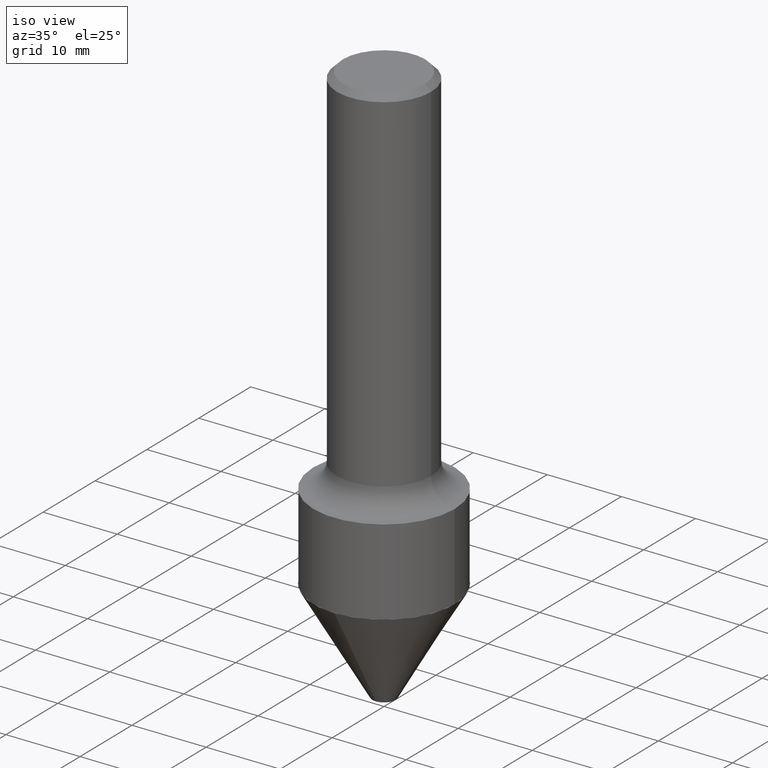
[diagram: clean part render]
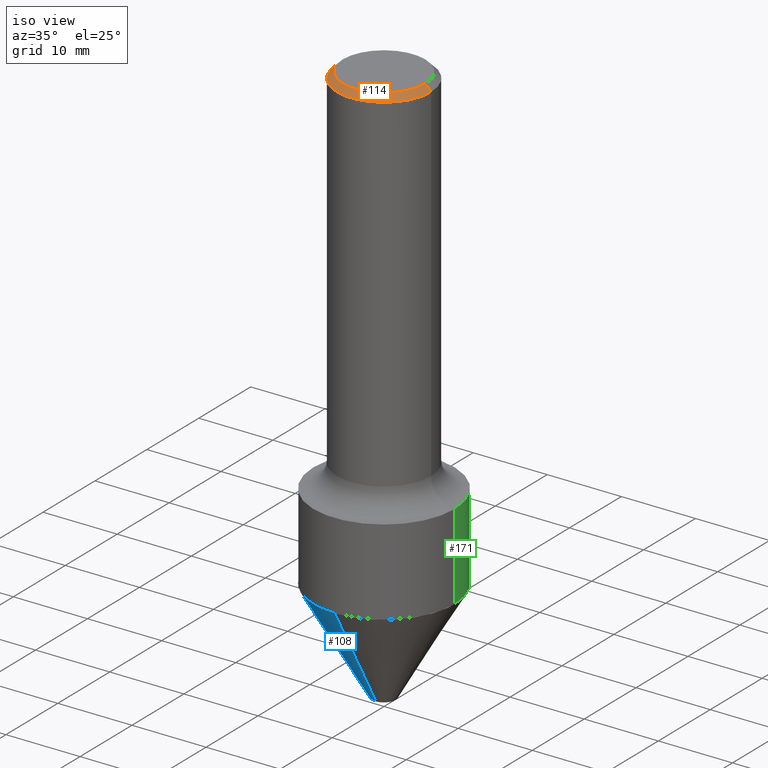
[diagram: same view with three faces highlighted in distinct colors, each labeled with its STEP entity id]
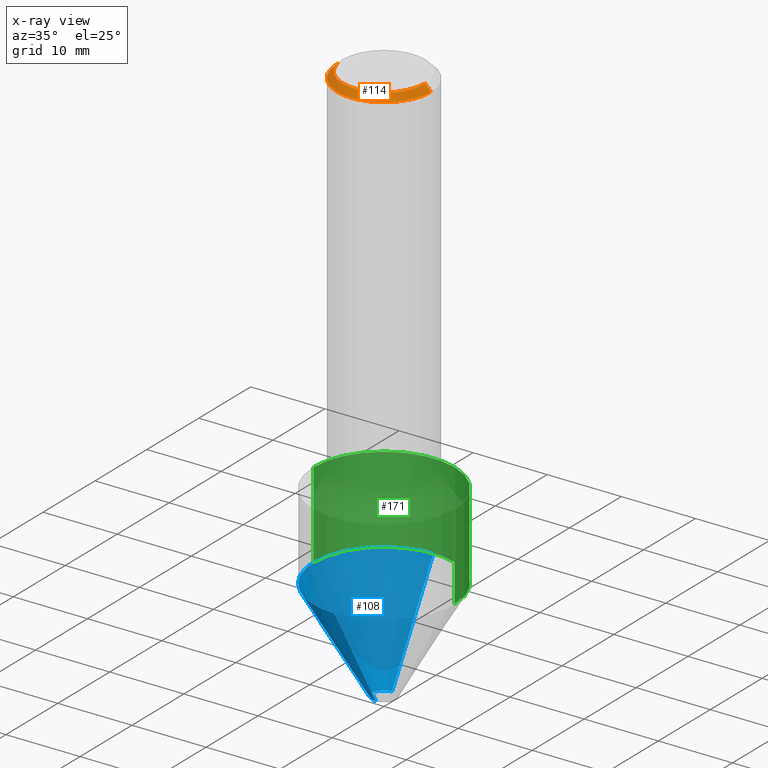
[diagram: x-ray of the same camera — body ghosted, the three highlighted faces saturated]
A machine part, iso view with three faces highlighted in distinct colors.
The next image is the same camera in x-ray (body ghosted, the three faces saturated) — at least one of them is partly hidden behind the body in this view.
Their STEP definitions:

[orange] entity #114 — the highlighted conical surface has half-angle 45 deg.
#37 = DIRECTION ( 'NONE',  ( -1.000000000000000000, 6.982962677686266711E-15, 0.000000000000000000 ) ) ;
#50 = DIRECTION ( 'NONE',  ( -2.445468806185136597E-29, 3.491481338843145583E-15, 1.000000000000000000 ) ) ;
#60 = ORIENTED_EDGE ( 'NONE', *, *, #115, .F. ) ;
#67 = ORIENTED_EDGE ( 'NONE', *, *, #286, .T. ) ;
#76 = DIRECTION ( 'NONE',  ( 0.7071067811865450192, -7.319954787623246579E-15, -0.7071067811865500152 ) ) ;
#78 = VERTEX_POINT ( 'NONE', #128 ) ;
#84 = LINE ( 'NONE', #331, #457 ) ;
#95 = CIRCLE ( 'NONE', #200, 0.2187999999999999945 ) ;
#110 = CONICAL_SURFACE ( 'NONE', #348, 0.2500000000000000000, 0.7853981633974447263 ) ;
#114 = ADVANCED_FACE ( 'NONE', ( #422 ), #110, .T. ) ;
#115 = EDGE_CURVE ( 'NONE', #168, #246, #84, .T. ) ;
#124 = EDGE_LOOP ( 'NONE', ( #60, #379, #373, #67 ) ) ;
#128 = CARTESIAN_POINT ( 'NONE',  ( -0.2500000000000000000, 1.636806451649659727E-15, -0.03120000000000020673 ) ) ;
#131 = EDGE_CURVE ( 'NONE', #492, #78, #452, .T. ) ;
#132 = DIRECTION ( 'NONE',  ( 2.445468806185136597E-29, -3.491481338843145583E-15, -1.000000000000000000 ) ) ;
#146 = EDGE_CURVE ( 'NONE', #492, #168, #95, .T. ) ;
#167 = DIRECTION ( 'NONE',  ( -0.7071067811865450192, 2.468850131082230634E-15, -0.7071067811865500152 ) ) ;
#168 = VERTEX_POINT ( 'NONE', #199 ) ;
#178 = CARTESIAN_POINT ( 'NONE',  ( 0.2500000000000000000, -1.824058717214789841E-15, -0.03120000000000020673 ) ) ;
#199 = CARTESIAN_POINT ( 'NONE',  ( 0.2187999999999999945, -1.662567839563600480E-15, 7.654042494682104827E-18 ) ) ;
#200 = AXIS2_PLACEMENT_3D ( 'NONE', #418, #50, #254 ) ;
#204 = CARTESIAN_POINT ( 'NONE',  ( -0.2500000000000000000, 1.636806451649659727E-15, -0.03120000000000020673 ) ) ;
#246 = VERTEX_POINT ( 'NONE', #178 ) ;
#254 = DIRECTION ( 'NONE',  ( 1.000000000000000000, -6.982962677686266711E-15, 4.876319244907601817E-29 ) ) ;
#264 = CARTESIAN_POINT ( 'NONE',  ( 7.629862675297676574E-31, -1.089342177719068640E-16, -0.03120000000000020673 ) ) ;
#286 = EDGE_CURVE ( 'NONE', #78, #246, #463, .T. ) ;
#288 = CARTESIAN_POINT ( 'NONE',  ( 7.629862675297676574E-31, -1.089342177719068640E-16, -0.03120000000000020673 ) ) ;
#301 = DIRECTION ( 'NONE',  ( -2.445468806185136597E-29, 3.491481338843145583E-15, 1.000000000000000000 ) ) ;
#331 = CARTESIAN_POINT ( 'NONE',  ( 0.2500000000000000000, -1.824058717214789841E-15, -0.03120000000000020673 ) ) ;
#345 = AXIS2_PLACEMENT_3D ( 'NONE', #264, #301, #495 ) ;
#348 = AXIS2_PLACEMENT_3D ( 'NONE', #288, #132, #37 ) ;
#366 = VECTOR ( 'NONE', #167, 39.37007874015748143 ) ;
#369 = CARTESIAN_POINT ( 'NONE',  ( -0.2187999999999999945, 1.582339342763707436E-15, 7.654042494660075270E-18 ) ) ;
#373 = ORIENTED_EDGE ( 'NONE', *, *, #131, .T. ) ;
#379 = ORIENTED_EDGE ( 'NONE', *, *, #146, .F. ) ;
#418 = CARTESIAN_POINT ( 'NONE',  ( -1.871772216193327269E-46, 2.672394653685605698E-32, 7.654042494670949841E-18 ) ) ;
#422 = FACE_OUTER_BOUND ( 'NONE', #124, .T. ) ;
#452 = LINE ( 'NONE', #204, #366 ) ;
#457 = VECTOR ( 'NONE', #76, 39.37007874015748143 ) ;
#463 = CIRCLE ( 'NONE', #345, 0.2500000000000000000 ) ;
#492 = VERTEX_POINT ( 'NONE', #369 ) ;
#495 = DIRECTION ( 'NONE',  ( 1.000000000000000000, -6.982962677686266711E-15, 0.000000000000000000 ) ) ;

[blue] entity #108 — the highlighted conical surface has half-angle 30 deg.
#10 = DIRECTION ( 'NONE',  ( -3.491481338843390130E-15, -0.5000000000000307532, 0.8660254037844207220 ) ) ;
#12 = DIRECTION ( 'NONE',  ( -2.537124591187716999E-29, 3.360225037996138960E-15, 1.000000000000000000 ) ) ;
#15 = VECTOR ( 'NONE', #10, 39.37007874015748854 ) ;
#25 = EDGE_CURVE ( 'NONE', #496, #405, #341, .T. ) ;
#27 = EDGE_CURVE ( 'NONE', #252, #405, #316, .T. ) ;
#58 = CARTESIAN_POINT ( 'NONE',  ( -4.294522046776347563E-16, -0.06150000000001086542, -3.000000000000000888 ) ) ;
#69 = EDGE_CURVE ( 'NONE', #342, #496, #474, .T. ) ;
#86 = VECTOR ( 'NONE', #125, 39.37007874015748143 ) ;
#108 = ADVANCED_FACE ( 'NONE', ( #118 ), #323, .T. ) ;
#118 = FACE_OUTER_BOUND ( 'NONE', #355, .T. ) ;
#125 = DIRECTION ( 'NONE',  ( 3.552713678800717866E-15, 0.5000000000000366374, 0.8660254037844175024 ) ) ;
#139 = DIRECTION ( 'NONE',  ( -6.982962677686265922E-15, -1.000000000000000000, 3.642463991552350169E-15 ) ) ;
#156 = CARTESIAN_POINT ( 'NONE',  ( 5.970236193676751076E-29, -8.633404227315247057E-15, -2.457002071827207423 ) ) ;
#241 = CARTESIAN_POINT ( 'NONE',  ( -2.618611004132290063E-15, -0.3750000000000085487, -2.457002071827206091 ) ) ;
#242 = AXIS2_PLACEMENT_3D ( 'NONE', #255, #400, #473 ) ;
#248 = AXIS2_PLACEMENT_3D ( 'NONE', #156, #12, #448 ) ;
#250 = ORIENTED_EDGE ( 'NONE', *, *, #25, .F. ) ;
#252 = VERTEX_POINT ( 'NONE', #58 ) ;
#255 = CARTESIAN_POINT ( 'NONE',  ( 7.347889590207925829E-29, -1.045799946114149675E-14, -3.000000000000000888 ) ) ;
#272 = CARTESIAN_POINT ( 'NONE',  ( -2.618611004132290457E-15, -0.3750000000000086597, -2.457002071827206091 ) ) ;
#276 = CARTESIAN_POINT ( 'NONE',  ( 1.550759520796487283E-15, 0.06149999999998995159, -3.000000000000000888 ) ) ;
#302 = CIRCLE ( 'NONE', #242, 0.06150000000000040851 ) ;
#316 = LINE ( 'NONE', #272, #15 ) ;
#323 = CONICAL_SURFACE ( 'NONE', #248, 0.3750000000000000555, 0.5235987755983378955 ) ;
#340 = CARTESIAN_POINT ( 'NONE',  ( 2.664535259100435256E-15, 0.3749999999999914513, -2.457002071827208756 ) ) ;
#341 = CIRCLE ( 'NONE', #393, 0.3750000000000000555 ) ;
#342 = VERTEX_POINT ( 'NONE', #276 ) ;
#355 = EDGE_LOOP ( 'NONE', ( #482, #376, #476, #250 ) ) ;
#376 = ORIENTED_EDGE ( 'NONE', *, *, #381, .T. ) ;
#381 = EDGE_CURVE ( 'NONE', #342, #252, #302, .T. ) ;
#390 = CARTESIAN_POINT ( 'NONE',  ( 5.970236193676751076E-29, -8.633404227315247057E-15, -2.457002071827207423 ) ) ;
#393 = AXIS2_PLACEMENT_3D ( 'NONE', #390, #504, #139 ) ;
#400 = DIRECTION ( 'NONE',  ( -2.537124591187716999E-29, 3.360225037996138960E-15, 1.000000000000000000 ) ) ;
#405 = VERTEX_POINT ( 'NONE', #241 ) ;
#421 = CARTESIAN_POINT ( 'NONE',  ( 2.664535259100435650E-15, 0.3749999999999915068, -2.457002071827208756 ) ) ;
#448 = DIRECTION ( 'NONE',  ( -6.982962677686265922E-15, -1.000000000000000000, 3.642463991552350169E-15 ) ) ;
#473 = DIRECTION ( 'NONE',  ( -6.982962677686265133E-15, -1.000000000000000000, 0.000000000000000000 ) ) ;
#474 = LINE ( 'NONE', #340, #86 ) ;
#476 = ORIENTED_EDGE ( 'NONE', *, *, #27, .T. ) ;
#482 = ORIENTED_EDGE ( 'NONE', *, *, #69, .F. ) ;
#496 = VERTEX_POINT ( 'NONE', #421 ) ;
#504 = DIRECTION ( 'NONE',  ( -2.537124591187716999E-29, 3.360225037996138960E-15, 1.000000000000000000 ) ) ;

[green] entity #171 — the highlighted cylindrical surface (partial cylindrical patch) has radius 9.525 mm, axis along (-0, 0, 1).
#4 = EDGE_LOOP ( 'NONE', ( #300, #338, #310, #416 ) ) ;
#14 = VERTEX_POINT ( 'NONE', #270 ) ;
#23 = CARTESIAN_POINT ( 'NONE',  ( 6.006076454579503906E-29, -8.575085401944798820E-15, -2.456002071827207978 ) ) ;
#35 = EDGE_CURVE ( 'NONE', #111, #14, #130, .T. ) ;
#44 = CARTESIAN_POINT ( 'NONE',  ( 0.3750000000000000555, -1.119369640607714884E-14, -2.456002071827207978 ) ) ;
#48 = CARTESIAN_POINT ( 'NONE',  ( -0.3750000000000000555, 2.664535259100376091E-15, -1.844600658845589598E-29 ) ) ;
#71 = EDGE_CURVE ( 'NONE', #14, #511, #371, .T. ) ;
#73 = LINE ( 'NONE', #48, #232 ) ;
#111 = VERTEX_POINT ( 'NONE', #44 ) ;
#130 = LINE ( 'NONE', #298, #318 ) ;
#148 = EDGE_CURVE ( 'NONE', #493, #511, #73, .T. ) ;
#152 = DIRECTION ( 'NONE',  ( -2.445468806185136597E-29, 3.491481338843145583E-15, 1.000000000000000000 ) ) ;
#171 = ADVANCED_FACE ( 'NONE', ( #370 ), #362, .T. ) ;
#232 = VECTOR ( 'NONE', #239, 39.37007874015748143 ) ;
#239 = DIRECTION ( 'NONE',  ( -2.445468806185136877E-29, 3.491481338843145188E-15, 1.000000000000000000 ) ) ;
#257 = DIRECTION ( 'NONE',  ( 1.000000000000000000, -6.982962677686266711E-15, 0.000000000000000000 ) ) ;
#270 = CARTESIAN_POINT ( 'NONE',  ( 0.3750000000000000555, -9.601573681818641971E-15, -2.000000000000000444 ) ) ;
#280 = EDGE_CURVE ( 'NONE', #111, #493, #467, .T. ) ;
#283 = AXIS2_PLACEMENT_3D ( 'NONE', #491, #152, #257 ) ;
#298 = CARTESIAN_POINT ( 'NONE',  ( 0.3750000000000000555, -2.618611004132350016E-15, 1.828566290923476203E-29 ) ) ;
#300 = ORIENTED_EDGE ( 'NONE', *, *, #280, .T. ) ;
#310 = ORIENTED_EDGE ( 'NONE', *, *, #71, .F. ) ;
#318 = VECTOR ( 'NONE', #409, 39.37007874015748143 ) ;
#319 = AXIS2_PLACEMENT_3D ( 'NONE', #23, #507, #392 ) ;
#338 = ORIENTED_EDGE ( 'NONE', *, *, #148, .T. ) ;
#362 = CYLINDRICAL_SURFACE ( 'NONE', #498, 0.3750000000000000555 ) ;
#367 = DIRECTION ( 'NONE',  ( -2.445468806185136597E-29, 3.491481338843145583E-15, 1.000000000000000000 ) ) ;
#370 = FACE_OUTER_BOUND ( 'NONE', #4, .T. ) ;
#371 = CIRCLE ( 'NONE', #283, 0.3750000000000000555 ) ;
#392 = DIRECTION ( 'NONE',  ( 1.000000000000000000, -6.982962677686266711E-15, 0.000000000000000000 ) ) ;
#409 = DIRECTION ( 'NONE',  ( -2.445468806185136877E-29, 3.491481338843145188E-15, 1.000000000000000000 ) ) ;
#416 = ORIENTED_EDGE ( 'NONE', *, *, #35, .F. ) ;
#461 = CARTESIAN_POINT ( 'NONE',  ( -0.3750000000000000555, -4.318427418585916257E-15, -2.000000000000000444 ) ) ;
#467 = CIRCLE ( 'NONE', #319, 0.3750000000000000555 ) ;
#478 = DIRECTION ( 'NONE',  ( 1.000000000000000000, -6.982962677686265922E-15, 4.876176775795935793E-29 ) ) ;
#491 = CARTESIAN_POINT ( 'NONE',  ( 4.890937612370273754E-29, -6.982962677686291954E-15, -2.000000000000000444 ) ) ;
#493 = VERTEX_POINT ( 'NONE', #497 ) ;
#497 = CARTESIAN_POINT ( 'NONE',  ( -0.3750000000000000555, -5.114488780715169690E-15, -2.456002071827207978 ) ) ;
#498 = AXIS2_PLACEMENT_3D ( 'NONE', #515, #367, #478 ) ;
#507 = DIRECTION ( 'NONE',  ( -2.445468806185136597E-29, 3.491481338843145583E-15, 1.000000000000000000 ) ) ;
#511 = VERTEX_POINT ( 'NONE', #461 ) ;
#515 = CARTESIAN_POINT ( 'NONE',  ( 0.000000000000000000, 0.000000000000000000, 0.000000000000000000 ) ) ;